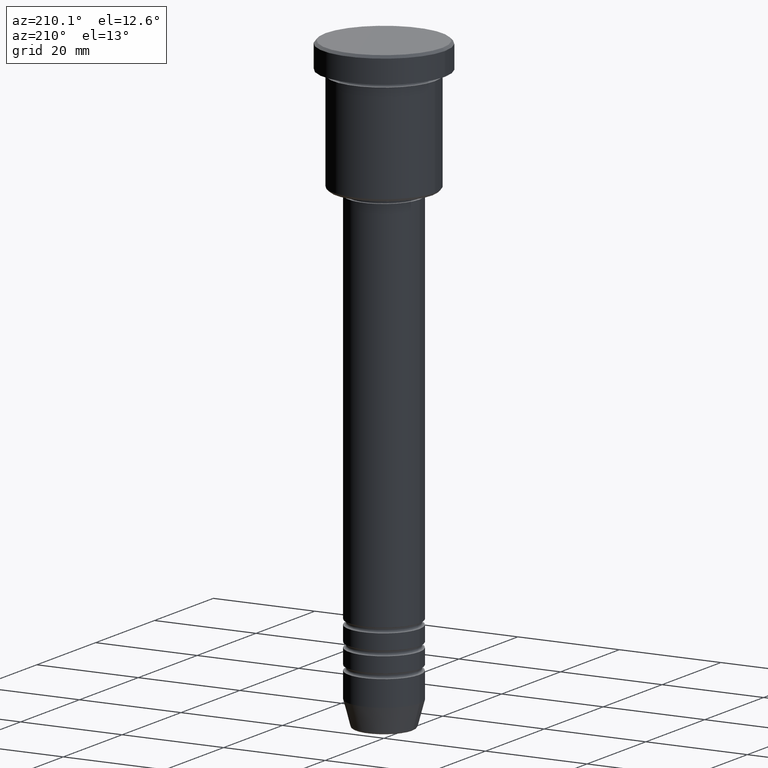
[diagram: clean part render]
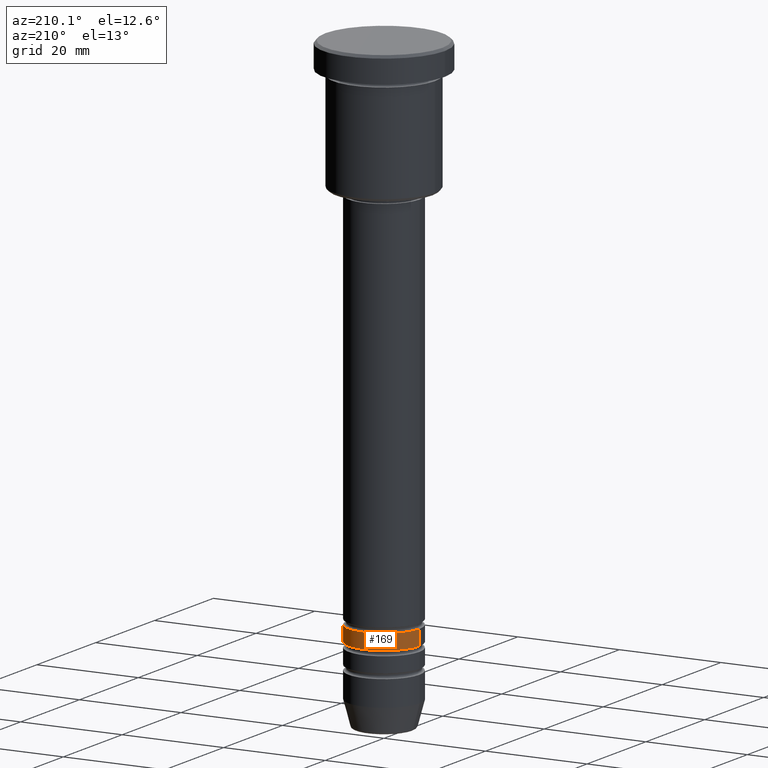
[diagram: same view with one face highlighted and labeled with its STEP entity id]
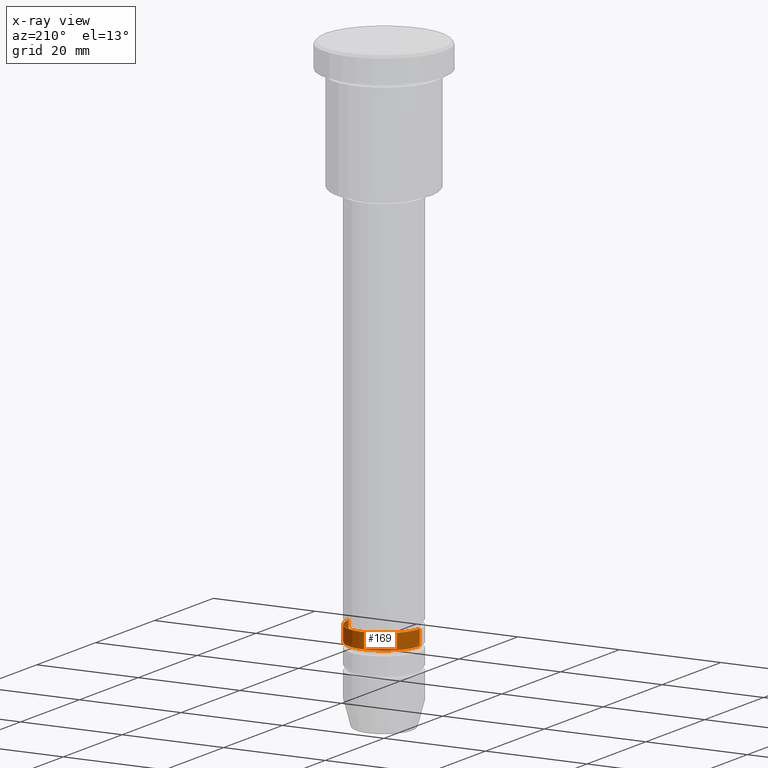
[diagram: x-ray of the same camera — body ghosted, the highlighted face saturated]
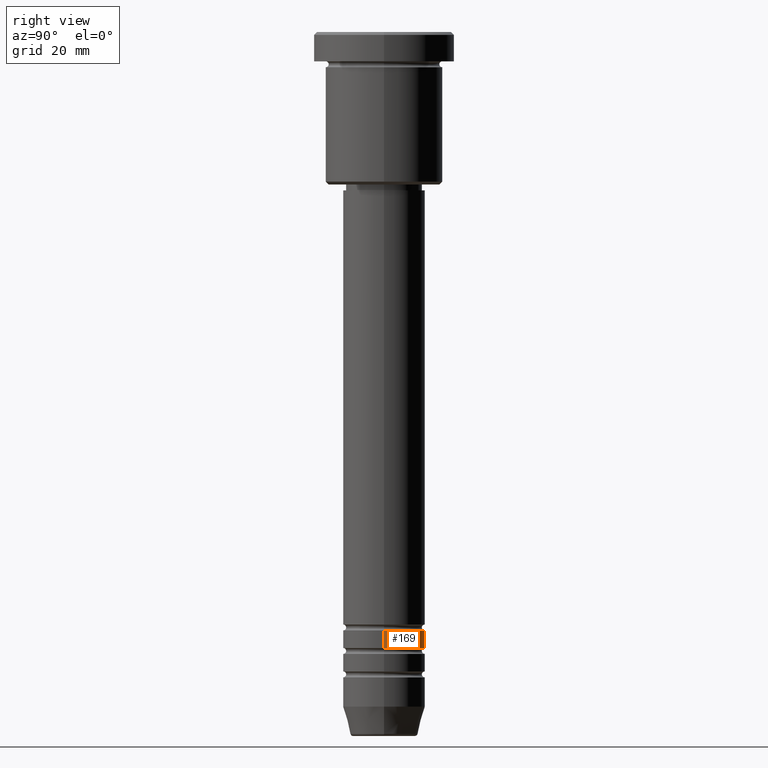
[diagram: same view with one face highlighted and labeled with its STEP entity id]
A machine part, auxiliary view. The second image highlights one B-rep face of the part: STEP entity #169.
The next image is the same camera in x-ray: the body ghosted, the highlighted face saturated — about 0% of this face is hidden behind the body in this view.
A second angle (right view) of the same face is appended — the face is thin or edge-on in the first view.
In plain terms, the highlighted cylindrical surface (partial cylindrical patch) has radius 7 mm, axis along (-0, -0, 1).
Its self-contained STEP definition (entity closure, byte-faithful):
#28 = CIRCLE ( 'NONE', #251, 7.000000000000002665 ) ;
#30 = CIRCLE ( 'NONE', #516, 7.000000000000000000 ) ;
#44 = ORIENTED_EDGE ( 'NONE', *, *, #279, .T. ) ;
#118 = DIRECTION ( 'NONE',  ( -0.000000000000000000, -0.000000000000000000, 1.000000000000000000 ) ) ;
#146 = LINE ( 'NONE', #797, #1115 ) ;
#169 = ADVANCED_FACE ( 'NONE', ( #820 ), #734, .T. ) ;
#244 = LINE ( 'NONE', #337, #313 ) ;
#251 = AXIS2_PLACEMENT_3D ( 'NONE', #642, #118, #856 ) ;
#279 = EDGE_CURVE ( 'NONE', #1071, #670, #28, .T. ) ;
#289 = ORIENTED_EDGE ( 'NONE', *, *, #589, .F. ) ;
#313 = VECTOR ( 'NONE', #523, 1000.000000000000000 ) ;
#337 = CARTESIAN_POINT ( 'NONE',  ( 7.000000000000000888, 0.000000000000000000, 0.000000000000000000 ) ) ;
#366 = CARTESIAN_POINT ( 'NONE',  ( 7.000000000000000000, 0.000000000000000000, -101.9999999999999858 ) ) ;
#437 = EDGE_CURVE ( 'NONE', #1071, #1132, #244, .T. ) ;
#462 = DIRECTION ( 'NONE',  ( 1.000000000000000000, 0.000000000000000000, 0.000000000000000000 ) ) ;
#479 = EDGE_CURVE ( 'NONE', #670, #1045, #146, .T. ) ;
#516 = AXIS2_PLACEMENT_3D ( 'NONE', #539, #626, #462 ) ;
#523 = DIRECTION ( 'NONE',  ( -0.000000000000000000, -0.000000000000000000, 1.000000000000000000 ) ) ;
#539 = CARTESIAN_POINT ( 'NONE',  ( 0.000000000000000000, 0.000000000000000000, -101.9999999999999858 ) ) ;
#589 = EDGE_CURVE ( 'NONE', #1132, #1045, #30, .T. ) ;
#626 = DIRECTION ( 'NONE',  ( -0.000000000000000000, -0.000000000000000000, 1.000000000000000000 ) ) ;
#630 = DIRECTION ( 'NONE',  ( -0.000000000000000000, -0.000000000000000000, 1.000000000000000000 ) ) ;
#642 = CARTESIAN_POINT ( 'NONE',  ( 0.000000000000000000, 0.000000000000000000, -104.9999999999999858 ) ) ;
#644 = EDGE_LOOP ( 'NONE', ( #44, #801, #289, #706 ) ) ;
#670 = VERTEX_POINT ( 'NONE', #1181 ) ;
#689 = DIRECTION ( 'NONE',  ( -0.000000000000000000, -0.000000000000000000, 1.000000000000000000 ) ) ;
#706 = ORIENTED_EDGE ( 'NONE', *, *, #437, .F. ) ;
#734 = CYLINDRICAL_SURFACE ( 'NONE', #1053, 7.000000000000000888 ) ;
#797 = CARTESIAN_POINT ( 'NONE',  ( -7.000000000000000888, 8.572527594031474176E-16, 0.000000000000000000 ) ) ;
#801 = ORIENTED_EDGE ( 'NONE', *, *, #479, .T. ) ;
#804 = CARTESIAN_POINT ( 'NONE',  ( 7.000000000000002665, 0.000000000000000000, -104.9999999999999858 ) ) ;
#820 = FACE_OUTER_BOUND ( 'NONE', #644, .T. ) ;
#856 = DIRECTION ( 'NONE',  ( 1.000000000000000000, 0.000000000000000000, 0.000000000000000000 ) ) ;
#1045 = VERTEX_POINT ( 'NONE', #1086 ) ;
#1053 = AXIS2_PLACEMENT_3D ( 'NONE', #1066, #630, #1061 ) ;
#1061 = DIRECTION ( 'NONE',  ( 1.000000000000000000, 0.000000000000000000, 0.000000000000000000 ) ) ;
#1066 = CARTESIAN_POINT ( 'NONE',  ( 0.000000000000000000, 0.000000000000000000, 0.000000000000000000 ) ) ;
#1071 = VERTEX_POINT ( 'NONE', #804 ) ;
#1086 = CARTESIAN_POINT ( 'NONE',  ( -7.000000000000000000, 8.572527594031473190E-16, -101.9999999999999858 ) ) ;
#1115 = VECTOR ( 'NONE', #689, 1000.000000000000000 ) ;
#1132 = VERTEX_POINT ( 'NONE', #366 ) ;
#1181 = CARTESIAN_POINT ( 'NONE',  ( -7.000000000000002665, 8.572527594031475162E-16, -104.9999999999999858 ) ) ;